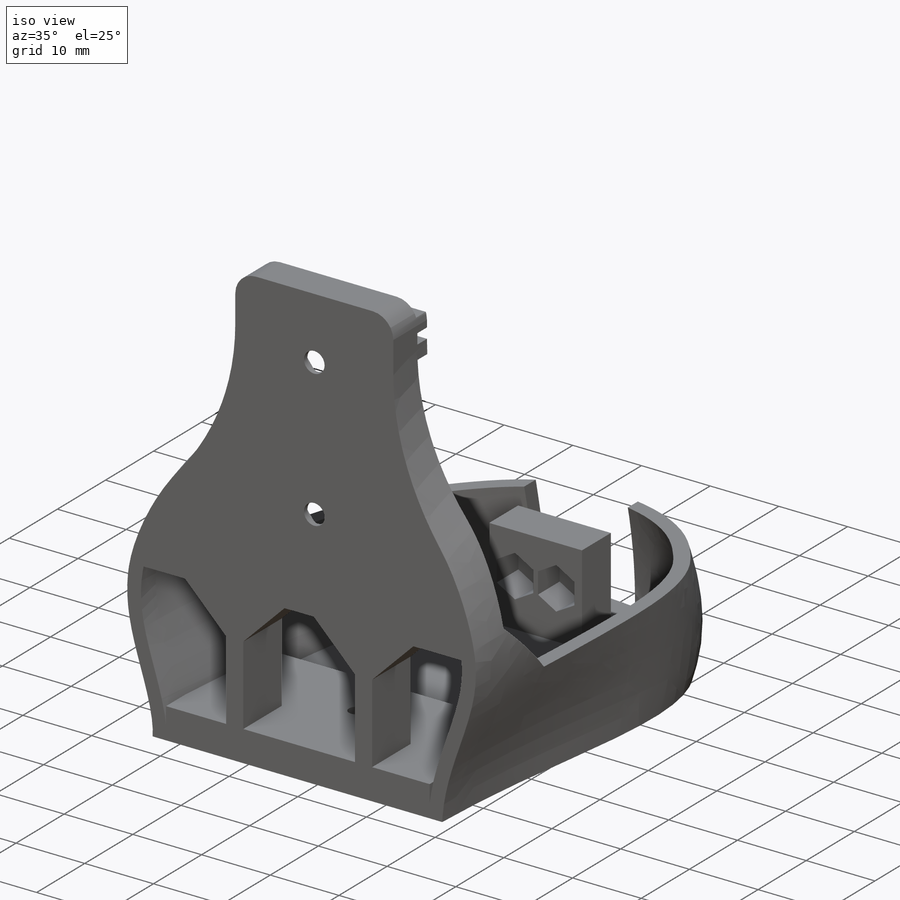
[diagram: iso view]
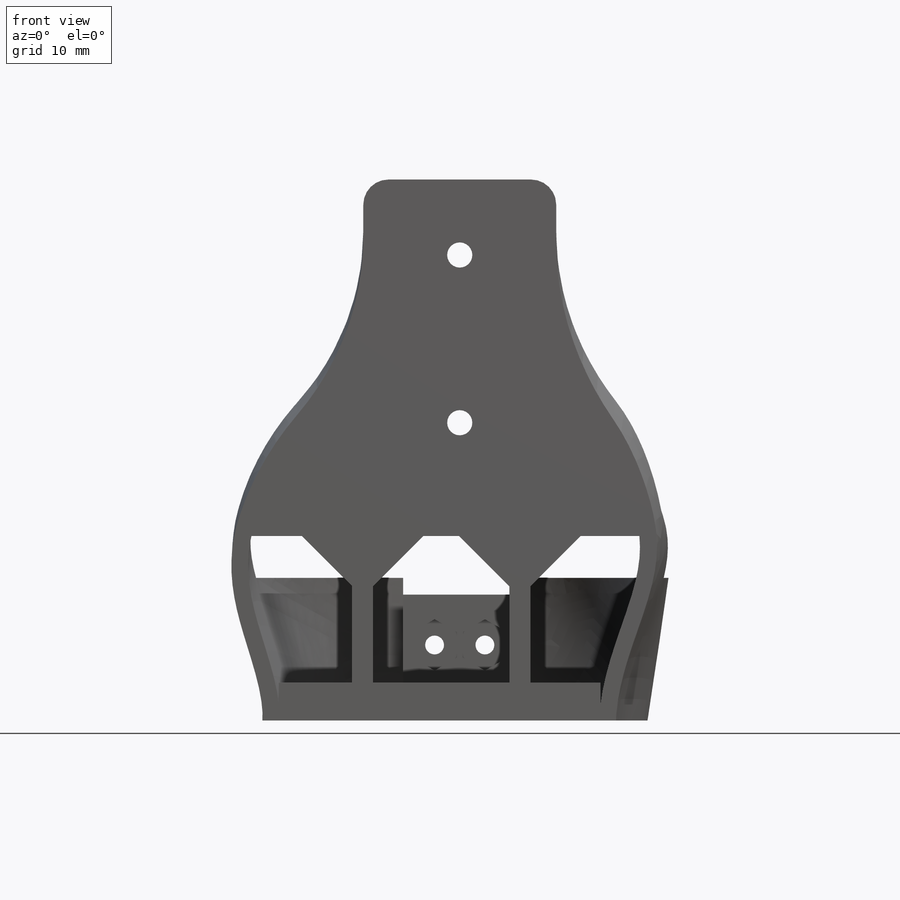
[diagram: front view]
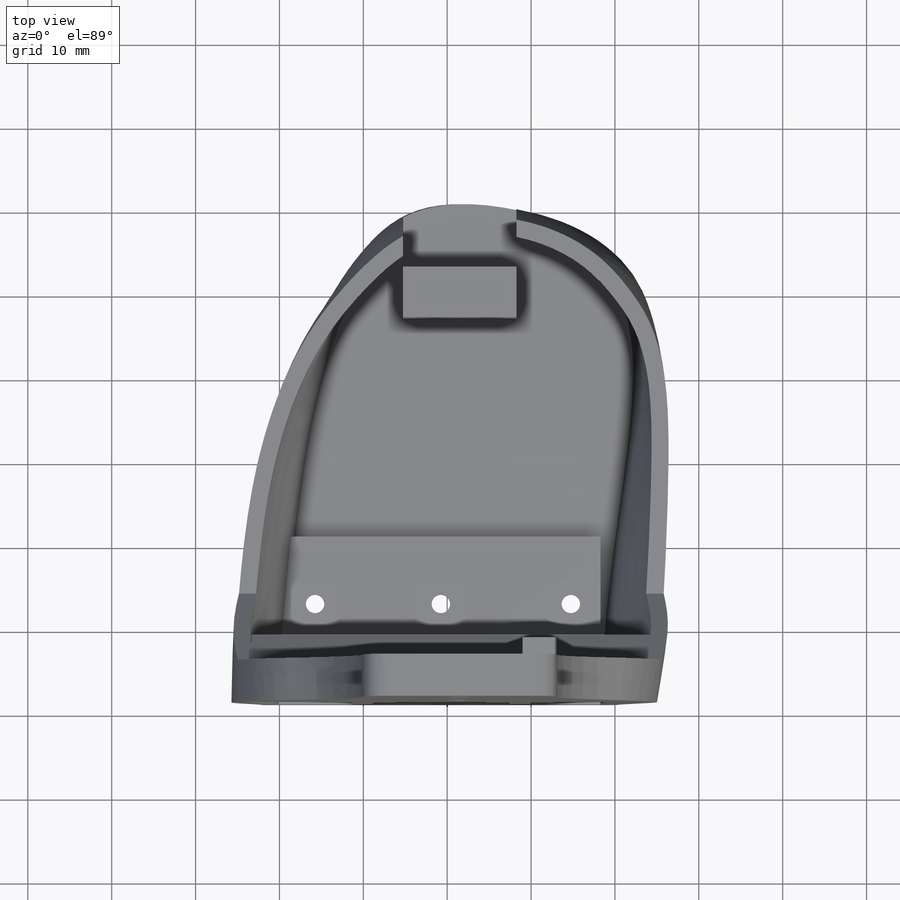
[diagram: top view]
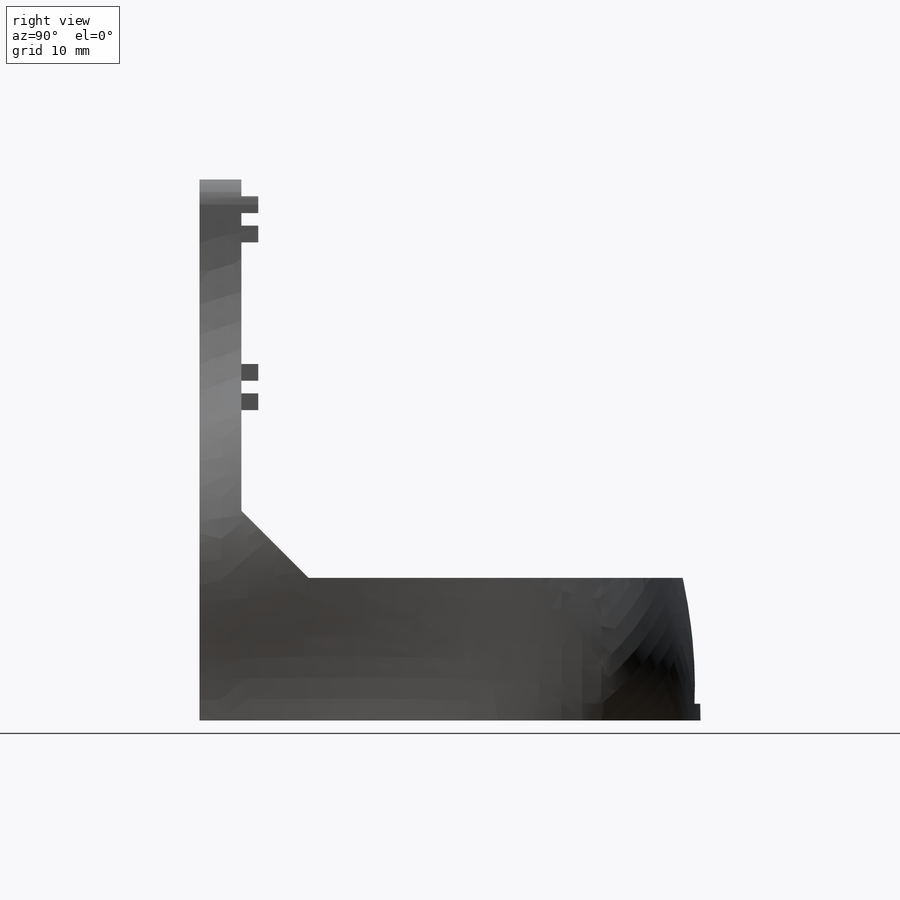
[diagram: right view]
SOLIDWORKS PART (.sldprt)
format: sldprt  version: not decoded by parser v0  size: 2,214,400 bytes
history: native  units: mm
features: sketch x60, plane x24, cut_extrude x12, extrude x10, fillet x4, chamfer x4, hole x3, mirror x3, pattern_linear x2, material x1, delete_body x1 + 1 further entry (+14 scaffold rows collapsed; 3 parser-record rows omitted)
feature tree (142):
  scaffold x14  (default folders/planes/origin — collapsed)
  material  "Matériau <non spécifié>"
  plane  "Plan de face"
  plane  "Plan de dessus"
  plane  "Plan de droite"
  plane  "Front Plane-new_foot"
  plane  "Top Plane-new_foot"
  plane  "Right Plane-new_foot"
  sketch  "lateral_dimensions-new_foot"  dims[D1=51.0mm D2=98.0mm D3=47.0mm D4=29.8mm D5=104.3mm D6=134.1mm D7=31.8mm D8=4.0mm D9=15.0mm]
  sketch  "planes_positions-new_foot"
  sketch  "top_dimensions-new_foot"  dims[c1.D1=28.5mm c1.D2=26.0mm c2.D1=26.0mm c2.D2=28.5mm]
  sketch  "lateral_shape-new_foot"
  plane  "sole_plane-new_foot"
  sketch  "sole_shape-new_foot"  dims[D1=~51.73616mm]
  plane  "mid_top_plane-new_foot"
  sketch  "mid_top_dimensions-new_foot"
  sketch  "Sketch1-new_foot"
  plane  "Plane2-new_foot"
  sketch  "Sketch2-new_foot"
  plane  "Plane3-new_foot"
  sketch  "Sketch3-new_foot"
  plane  "Plane4-new_foot"
  sketch  "Sketch4-new_foot"
  plane  "Plane6-new_foot"
  sketch  "Sketch6-new_foot"
  plane  "Plane8-new_foot"
  sketch  "Sketch8-new_foot"
  plane  "Plane9-new_foot"
  sketch  "Sketch9-new_foot"
  plane  "Plane7-new_foot"
  sketch  "3DSketch3-new_foot"
  sketch  "3DSketch8-new_foot"
  sketch  "3DSketch9-new_foot"
  sketch  "3DSketch1-new_foot"
  sketch  "3DSketch2-new_foot"
  sketch  "3DSketch6-new_foot"
  sketch  "3DSketch4-new_foot"
  sketch  "3DSketch5-new_foot"
  plane  "Plane11-new_foot"
  sketch  "Sketch22-new_foot"
  sketch  "Sketch24-new_foot"  dims[D1=1.0mm]
  sketch  "Sketch26-new_foot"
  sketch  "Sketch27-new_foot"  dims[D1=18.0mm]
  sketch  "Sketch28-new_foot"  dims[c1.D1=16.0mm c1.D2=16.0mm c1.D3=16.0mm c2.D2=9.0mm c2.D3=2.0mm]
  plane  "Plane10-new_foot"
  sketch  "Sketch11-new_foot"  dims[D1=47.0mm D2=25.0mm D3=26.0mm D4=3.0mm D5=3.0mm]
  sketch  "Sketch12-new_foot"  dims[c1.D1=8.3mm c1.D2=8.3mm c1.D3=8.3mm c1.D4=8.3mm c2.D2=39.0mm c2.D3=12.5mm c2.D4=5.0mm c2.D5=3.0mm c2.D6=3.0mm c2.D7=19.0mm c3.D5=5.0mm]
  sketch  "Sketch21-new_foot"  dims[D1=5.0mm D2=22.0mm]
  plane  "Plane5-new_foot"
  sketch  "Sketch35-new_foot"  dims[D1=5.0mm D2=24.0mm]
  sketch  "Sketch36-new_foot"
  sketch  "Sketch37-new_foot"
  "new_foot"
  parser-record x3  (decoder bookkeeping rows leaked as tree rows — omitted from the tree; the rows remain in map.json)
  plane  "Plane16"
  sketch  "Sketch25"  dims[c1.D1=16.0mm c1.D2=6.0mm c1.D3=15.0mm c1.D4=35.0mm c1.D5=7.0mm c1.D6=7.0mm c1.D7=17.0mm c1.D8=1.0mm c2.D2=25.0mm]
  extrude  "Boss-Extrude1"  Depth=10mm
  sketch  "Sketch32"  dims[D1=7.0mm D2=1.0mm D3=21.0mm D4=9.0mm]
  extrude  "Boss-Extrude3"  [1 undecoded]
  sketch  "Sketch26"  dims[c1.D1=~4.124212mm c1.D2=~4.124212mm c1.D3=5.3mm c2.D1=5.3mm c2.D2=5.3mm c3.D1=7.5mm c3.D2=4.0mm c4.D1=4.0mm c4.D2=17.5mm]
  cut_extrude  "Cut-Extrude1"  [1 undecoded]
  sketch  "Sketch27"  dims[D1=5.0mm D2=5.0mm D3=5.0mm D4=5.0mm D5=8.0mm D6=8.0mm D7=3.0mm D8=10.0mm]
  extrude  "Boss-Extrude2"  [1 undecoded]
  sketch  "Sketch28"  dims[c1.D1=3.0mm c1.D2=3.0mm c1.D3=3.0mm c2.D2=2.5mm c2.D3=2.5mm]
  cut_extrude  "Cut-Extrude2"  [1 undecoded]
  sketch  "Sketch29"  dims[c1.D1=4.5mm c1.D2=4.5mm c1.D3=4.5mm c1.D4=4.5mm c1.D5=4.5mm c1.D6=4.5mm c2.D3=15.0mm c2.D4=15.0mm c2.D5=7.0mm c2.D6=7.0mm]
  cut_extrude  "Cut-Extrude3"  [1 undecoded]
  fillet  "Fillet1"  Radius=5mm
  chamfer  "Chamfer1"  Distance=12mm Angle=35deg
  sketch  "Sketch30"
  cut_extrude  "Cut-Extrude4"  Depth=15mm
  sketch  "Sketch31"  dims[D1=9.0mm D2=9.0mm]
  cut_extrude  "Cut-Extrude5"  Depth=2mm
  sketch  "Sketch33"  dims[D1=2.8mm D2=2.8mm]
  extrude  "Boss-Extrude4"  Depth=7mm
  hole  "CBORE for M2 Pan Head Machine Screw1"  Diameter=3mm Depth=2.8mm
  sketch  "Sketch36"  dims[D1=3.5mm D2=3.0mm]
  sketch  "Sketch35"  dims[hole-wizard template sketch: 42 standard entries collapsed; hole parameters kept: c12.Thru Hole Depth=2.8mm c12.C'Bore Dia.=5.0mm c12.C'Bore Depth=1.5mm]
  hole  "CBORE for M2 Pan Head Machine Screw3"  Diameter=3mm Depth=2.8mm
  sketch  "Sketch40"  dims[D1=3.5mm D2=3.0mm]
  sketch  "Sketch39"  dims[hole-wizard template sketch: 42 standard entries collapsed; hole parameters kept: c12.Thru Hole Depth=2.8mm c12.C'Bore Dia.=5.0mm c12.C'Bore Depth=1.5mm]
  fillet  "Fillet2"  Radius=3mm
  plane  "Plane17"
  sketch  "Sketch41"
  cut_extrude  "Cut-Extrude6"  [1 undecoded]
  plane  "Plane18"
  sketch  "Sketch44"  dims[c1.D1=5.0mm c1.D2=47.0mm c1.D3=5.0mm c2.D2=23.0mm c2.D3=10.0mm]
  extrude  "Boss-Extrude5"  Depth=17.5mm
  sketch  "Sketch47"  dims[c1.D1=47.0mm c1.D2=5.3mm c1.D3=13.5mm c1.D4=6.35mm c1.D5=5.0mm c2.D2=8.25mm c2.D4=3.5mm c2.D5=3.5mm c2.D6=32.5mm c2.D7=20.0mm c3.D4=5.3mm c4.D4=90.0deg c5.D4=10.0mm]
  cut_extrude  "Cut-Extrude9"  [1 undecoded]
  sketch  "Sketch48"  dims[D1=6.0mm D2=2.0mm D3=55.0mm D4=28.0mm]
  cut_extrude  "Cut-Extrude11"  Depth=30mm
  sketch  "Sketch45"  dims[c1.D1=3.0mm c1.D2=3.0mm c1.D3=3.0mm c2.D2=8.5mm c2.D3=1.5mm c3.D2=8.5mm]
  cut_extrude  "Cut-Extrude7"  [1 undecoded]
  sketch  "Sketch46"  dims[D1=10.3mm]
  cut_extrude  "Cut-Extrude8"  Depth=4.3mm
  sketch  "Sketch49"  dims[D1=6.0mm D2=~6.612324mm D3=~1.04073mm D4=13.5mm]
  extrude  "Boss-Extrude6"  Depth=13mm
  sketch  "Sketch50"  dims[c1.D1=2.25mm c1.D2=2.25mm c1.D3=2.0mm c1.D4=2.0mm c1.D5=2.0mm c1.D6=2.0mm c2.D3=3.75mm c2.D4=3.75mm c2.D5=7.0mm c2.D6=7.0mm]
  cut_extrude  "Cut-Extrude12"  [1 undecoded]
  sketch  "Sketch52"  dims[D1=1.5mm D2=2.0mm D3=2.0mm D4=3.5mm D5=4.0mm D6=4.0mm]
  extrude  "Boss-Extrude8"  Depth=2mm
  sketch  "Sketch53"  dims[D1=5.3mm D2=5.3mm]
  cut_extrude  "Cut-Extrude13"  Depth=4.5mm
  sketch  "Sketch54"  dims[D1=2.5mm]
  extrude  "Boss-Extrude9"  Depth=20mm
  plane  "Plane20"  Offset=1.5mm
  mirror  "Mirror2"
  hole  "CBORE for M2 Hex Socket Head Cap Screw1"  Diameter=2.2mm Depth=4.499997mm
  sketch  "Sketch43"  dims[D1=12.0mm D2=15.75mm D3=0.75mm D4=14.75mm]
  sketch  "Sketch42"  dims[hole-wizard template sketch: 42 standard entries collapsed; hole parameters kept: c12.Thru Hole Depth=~4.499997mm c12.C'Bore Dia.=5.0mm c12.C'Bore Depth=3.0mm c12.Mid C'Sink Dia.=2.25mm c12.D6=~5.388154mm c12.Mid C'Sink Angle=90.0deg]
  fillet  "Fillet3"  Radius=30mm
  fillet  "Fillet4"  Radius=3mm
  chamfer  "Chamfer2"  Distance=10mm Angle=45deg
  plane  "Plane19"  Offset=30mm
  plane  "Plane21"  Offset=25mm
  sketch  "Sketch55"  dims[D1=5.0mm]
  extrude  "Boss-Extrude10"  [1 undecoded]
  mirror  "Mirror1"
  delete_body  "Body-Delete1"
  pattern_linear  "LPattern1"  Count1=2 Count2=1 Spacing1=20mm Spacing2=10mm
  chamfer  "Chamfer4"  Distance=8mm Angle=45deg
  sketch  "Sketch56"  dims[D1=2.5mm D2=2.5mm D3=12.0mm D4=13.0mm]
  extrude  "Boss-Extrude11"  [1 undecoded]
  chamfer  "Chamfer5"  Distance=6mm Angle=45deg
  mirror  "Mirror3"
  pattern_linear  "Body-Delete2"  [2 undecoded]
decode coverage: 59 of 99 modeling features carry decoded parameters; 1 rows unclassified (native names shown)
note: ~ marks probable driven/reference dimensions
note: 13 parameter values undecoded
summary: no parameter record found for 11 features
note: suppression state not decoded; provenance and decode notes live in map.json
